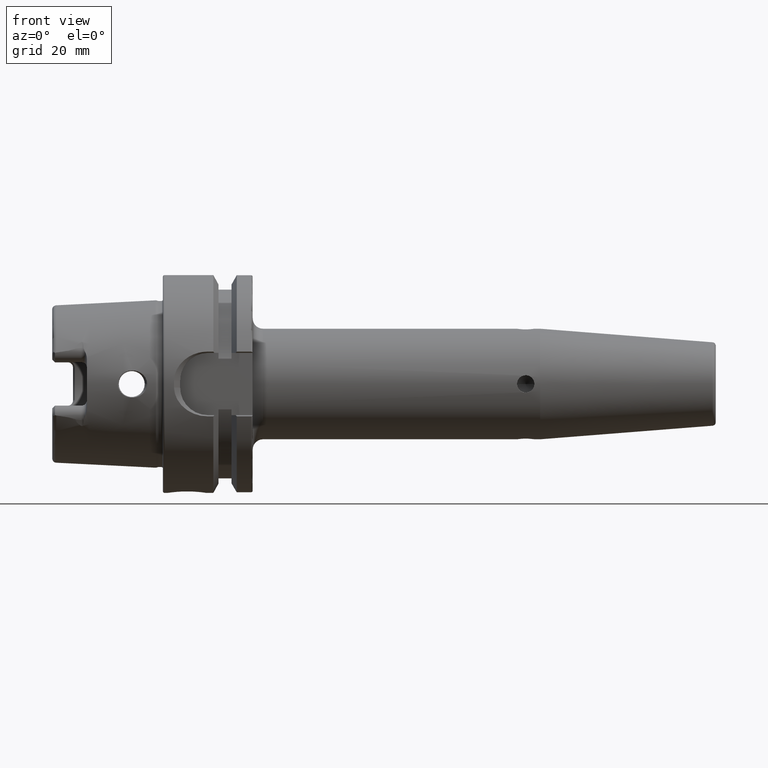
[diagram: clean part render]
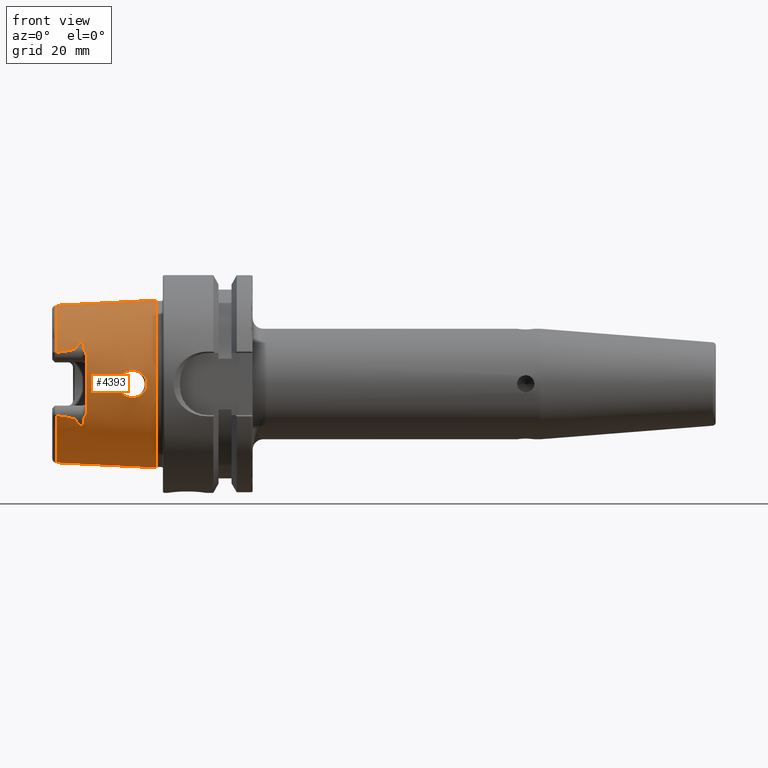
[diagram: same view with one face highlighted and labeled with its STEP entity id]
A machine part, front view. The second image highlights one B-rep face of the part: STEP entity #4393.
In plain terms, the highlighted conical surface has half-angle 2.868 deg.
Its self-contained STEP definition (entity closure, byte-faithful):
#1205=CARTESIAN_POINT('',(-3.086004333271E1,0.E0,0.E0));
#1206=DIRECTION('',(-1.E0,0.E0,0.E0));
#1207=DIRECTION('',(0.E0,0.E0,-1.E0));
#1208=AXIS2_PLACEMENT_3D('',#1205,#1206,#1207);
#1210=CARTESIAN_POINT('',(-3.086004333271E1,-2.086981840766E1,
-9.117659021249E0));
#1211=CARTESIAN_POINT('',(-3.065605186921E1,-2.087009790144E1,
-9.142546682600E0));
#1212=CARTESIAN_POINT('',(-3.026548971795E1,-2.087000011471E1,
-9.191475209956E0));
#1213=CARTESIAN_POINT('',(-2.973365321821E1,-2.086810691684E1,
-9.261644143754E0));
#1214=CARTESIAN_POINT('',(-2.925038551401E1,-2.086470072146E1,
-9.328786458642E0));
#1215=CARTESIAN_POINT('',(-2.880157988887E1,-2.085984936823E1,
-9.394516747198E0));
#1216=CARTESIAN_POINT('',(-2.838907941827E1,-2.085367010435E1,
-9.458361489324E0));
#1217=CARTESIAN_POINT('',(-2.802099682424E1,-2.084652664288E1,
-9.518574595620E0));
#1218=CARTESIAN_POINT('',(-2.767812179380E1,-2.083824707065E1,
-9.577892562152E0));
#1219=CARTESIAN_POINT('',(-2.735909724315E1,-2.082880059047E1,
-9.636540338401E0));
#1220=CARTESIAN_POINT('',(-2.707640752188E1,-2.081875776007E1,
-9.691819563709E0));
#1221=CARTESIAN_POINT('',(-2.681109569702E1,-2.080761261851E1,
-9.747101291047E0));
#1222=CARTESIAN_POINT('',(-2.656858158621E1,-2.079554827328E1,
-9.801340213004E0));
#1223=CARTESIAN_POINT('',(-2.635507856236E1,-2.078317780740E1,
-9.852543087215E0));
#1224=CARTESIAN_POINT('',(-2.614343140954E1,-2.076877229942E1,
-9.907525856621E0));
#1225=CARTESIAN_POINT('',(-2.596459737730E1,-2.075441286803E1,
-9.958294561477E0));
#1226=CARTESIAN_POINT('',(-2.579520406731E1,-2.073852104516E1,
-1.001089413177E1));
#1227=CARTESIAN_POINT('',(-2.563886330149E1,-2.072082009527E1,
-1.006541254284E1));
#1228=CARTESIAN_POINT('',(-2.551094126364E1,-2.070354791350E1,
-1.011550881391E1));
#1229=CARTESIAN_POINT('',(-2.537697699431E1,-2.068112228769E1,
-1.017650437323E1));
#1230=CARTESIAN_POINT('',(-2.527062763811E1,-2.065753992865E1,
-1.023629340194E1));
#1231=CARTESIAN_POINT('',(-2.518213991029E1,-2.063064078682E1,
-1.030035138509E1));
#1232=CARTESIAN_POINT('',(-2.511551447564E1,-2.059710280776E1,
-1.037470366444E1));
#1233=CARTESIAN_POINT('',(-2.509792629022E1,-2.057060375039E1,
-1.042902505095E1));
#1234=CARTESIAN_POINT('',(-2.509832943528E1,-2.055609878966E1,
-1.045749263925E1));
#1236=CARTESIAN_POINT('',(-2.509832943528E1,-2.055609878966E1,
-1.045749263925E1));
#1237=CARTESIAN_POINT('',(-2.509973452206E1,-2.050554446019E1,
-1.055671109738E1));
#1238=CARTESIAN_POINT('',(-2.507065476512E1,-2.040407944593E1,
-1.075584740029E1));
#1239=CARTESIAN_POINT('',(-2.492546543353E1,-2.024884407642E1,
-1.106051396733E1));
#1240=CARTESIAN_POINT('',(-2.468318136842E1,-2.009639154268E1,
-1.135971891163E1));
#1241=CARTESIAN_POINT('',(-2.435973964364E1,-1.995041487066E1,
-1.164621426170E1));
#1242=CARTESIAN_POINT('',(-2.396639941619E1,-1.981051447172E1,
-1.192078425439E1));
#1243=CARTESIAN_POINT('',(-2.366236291861E1,-1.972062082665E1,
-1.209721046657E1));
#1244=CARTESIAN_POINT('',(-2.35E1,-1.967619090430E1,-1.218440909893E1));
#1246=CARTESIAN_POINT('',(-2.35E1,-1.967619090430E1,1.218440909893E1));
#1247=CARTESIAN_POINT('',(-2.366273962512E1,-1.972072391079E1,
1.209700815256E1));
#1248=CARTESIAN_POINT('',(-2.396737226811E1,-1.981081058458E1,
1.192020310018E1));
#1249=CARTESIAN_POINT('',(-2.436114053628E1,-1.995096134710E1,
1.164514174130E1));
#1250=CARTESIAN_POINT('',(-2.468459443081E1,-2.009709754078E1,
1.135833331235E1));
#1251=CARTESIAN_POINT('',(-2.492685004054E1,-2.024992689999E1,
1.105838880642E1));
#1252=CARTESIAN_POINT('',(-2.507099685322E1,-2.040484030157E1,
1.075435413702E1));
#1253=CARTESIAN_POINT('',(-2.509972603515E1,-2.050584981529E1,
1.055611180425E1));
#1254=CARTESIAN_POINT('',(-2.509832943528E1,-2.055609878966E1,
1.045749263925E1));
#1256=CARTESIAN_POINT('',(-3.086004333271E1,-2.086981840766E1,
9.117659021249E0));
#1257=CARTESIAN_POINT('',(-3.065605186921E1,-2.087009790144E1,
9.142546682600E0));
#1258=CARTESIAN_POINT('',(-3.026548971795E1,-2.087000011471E1,
9.191475209956E0));
#1259=CARTESIAN_POINT('',(-2.973365321821E1,-2.086810691684E1,
9.261644143754E0));
#1260=CARTESIAN_POINT('',(-2.925038551401E1,-2.086470072146E1,
9.328786458642E0));
#1261=CARTESIAN_POINT('',(-2.880157988887E1,-2.085984936823E1,
9.394516747198E0));
#1262=CARTESIAN_POINT('',(-2.838907941827E1,-2.085367010435E1,
9.458361489324E0));
#1263=CARTESIAN_POINT('',(-2.802099682424E1,-2.084652664288E1,
9.518574595620E0));
#1264=CARTESIAN_POINT('',(-2.767812179380E1,-2.083824707065E1,
9.577892562152E0));
#1265=CARTESIAN_POINT('',(-2.735909724315E1,-2.082880059047E1,
9.636540338401E0));
#1266=CARTESIAN_POINT('',(-2.707640752188E1,-2.081875776007E1,
9.691819563709E0));
#1267=CARTESIAN_POINT('',(-2.681109569702E1,-2.080761261851E1,
9.747101291047E0));
#1268=CARTESIAN_POINT('',(-2.656858158621E1,-2.079554827328E1,
9.801340213004E0));
#1269=CARTESIAN_POINT('',(-2.635507856236E1,-2.078317780740E1,
9.852543087215E0));
#1270=CARTESIAN_POINT('',(-2.614343140954E1,-2.076877229942E1,
9.907525856621E0));
#1271=CARTESIAN_POINT('',(-2.596459737730E1,-2.075441286803E1,
9.958294561477E0));
#1272=CARTESIAN_POINT('',(-2.579520406731E1,-2.073852104516E1,
1.001089413177E1));
#1273=CARTESIAN_POINT('',(-2.563886330149E1,-2.072082009527E1,
1.006541254284E1));
#1274=CARTESIAN_POINT('',(-2.551094126364E1,-2.070354791350E1,
1.011550881391E1));
#1275=CARTESIAN_POINT('',(-2.537697699431E1,-2.068112228769E1,
1.017650437323E1));
#1276=CARTESIAN_POINT('',(-2.527062763811E1,-2.065753992865E1,
1.023629340194E1));
#1277=CARTESIAN_POINT('',(-2.518213991029E1,-2.063064078682E1,
1.030035138509E1));
#1278=CARTESIAN_POINT('',(-2.511551447564E1,-2.059710280776E1,
1.037470366444E1));
#1279=CARTESIAN_POINT('',(-2.509792629022E1,-2.057060375039E1,
1.042902505095E1));
#1280=CARTESIAN_POINT('',(-2.509832943528E1,-2.055609878966E1,
1.045749263925E1));
#1282=CARTESIAN_POINT('',(-3.086004333271E1,0.E0,0.E0));
#1283=DIRECTION('',(-1.E0,0.E0,0.E0));
#1284=DIRECTION('',(0.E0,-9.163649919573E-1,4.003438540993E-1));
#1285=AXIS2_PLACEMENT_3D('',#1282,#1283,#1284);
#1287=DIRECTION('',(-9.987474310439E-1,-1.043943068730E-10,-5.003567710383E-2));
#1288=VECTOR('',#1287,2.889623723507E1);
#1289=CARTESIAN_POINT('',(-2.000000627352E0,3.013169918385E-9,
2.422041252602E1));
#1290=LINE('',#1289,#1288);
#1291=CARTESIAN_POINT('',(-2.000078966146E0,0.E0,0.E0));
#1292=DIRECTION('',(-1.E0,0.E0,0.E0));
#1293=DIRECTION('',(0.E0,0.E0,-1.E0));
#1294=AXIS2_PLACEMENT_3D('',#1291,#1292,#1293);
#1296=DIRECTION('',(-9.987474310439E-1,1.043954869385E-10,5.003567710383E-2));
#1297=VECTOR('',#1296,2.889623723507E1);
#1298=CARTESIAN_POINT('',(-2.000000627352E0,-3.013171862045E-9,
-2.422041252602E1));
#1299=LINE('',#1298,#1297);
#1300=CARTESIAN_POINT('',(-4.550876813471E0,-2.409262908457E1,0.E0));
#1301=CARTESIAN_POINT('',(-4.550876813471E0,-2.409262908457E1,
-2.877967437564E-1));
#1302=CARTESIAN_POINT('',(-4.618402668122E0,-2.407904026989E1,
-8.400480277036E-1));
#1303=CARTESIAN_POINT('',(-4.894270861234E0,-2.402533951533E1,
-1.607621503292E0));
#1304=CARTESIAN_POINT('',(-5.311993211538E0,-2.394889792202E1,
-2.281051834978E0));
#1305=CARTESIAN_POINT('',(-5.862519901701E0,-2.385721878678E1,
-2.867738815602E0));
#1306=CARTESIAN_POINT('',(-6.525866941490E0,-2.376062455518E1,
-3.345027969698E0));
#1307=CARTESIAN_POINT('',(-7.283123635549E0,-2.366962568370E1,
-3.694964458018E0));
#1308=CARTESIAN_POINT('',(-8.068113572350E0,-2.359725545319E1,
-3.894815234736E0));
#1309=CARTESIAN_POINT('',(-8.870763704734E0,-2.354641057253E1,
-3.954593366443E0));
#1310=CARTESIAN_POINT('',(-9.668430299005E0,-2.351943467091E1,
-3.874115224399E0));
#1311=CARTESIAN_POINT('',(-1.044589907295E1,-2.351586499835E1,
-3.652697425224E0));
#1312=CARTESIAN_POINT('',(-1.117274859870E1,-2.353296697451E1,
-3.292217258769E0));
#1313=CARTESIAN_POINT('',(-1.181517087273E1,-2.356448626338E1,
-2.804326645060E0));
#1314=CARTESIAN_POINT('',(-1.234145757444E1,-2.360166761628E1,
-2.212677597337E0));
#1315=CARTESIAN_POINT('',(-1.273619031472E1,-2.363617974383E1,
-1.537866875102E0));
#1316=CARTESIAN_POINT('',(-1.298600958619E1,-2.366096015370E1,
-7.912407707895E-1));
#1317=CARTESIAN_POINT('',(-1.304439190524E1,-2.366711362744E1,
-2.691253192330E-1));
#1318=CARTESIAN_POINT('',(-1.304439190524E1,-2.366711362744E1,0.E0));
#1320=CARTESIAN_POINT('',(-1.304439190524E1,-2.366711362744E1,0.E0));
#1321=CARTESIAN_POINT('',(-1.304439190524E1,-2.366711362744E1,
2.703037479710E-1));
#1322=CARTESIAN_POINT('',(-1.298550406978E1,-2.366090648148E1,
7.943947598310E-1));
#1323=CARTESIAN_POINT('',(-1.273401403229E1,-2.363596973658E1,
1.542974157060E0));
#1324=CARTESIAN_POINT('',(-1.233736358375E1,-2.360133785537E1,
2.218343463292E0));
#1325=CARTESIAN_POINT('',(-1.181014932937E1,-2.356418192045E1,
2.808926516834E0));
#1326=CARTESIAN_POINT('',(-1.116702224785E1,-2.353275771571E1,
3.295736926792E0));
#1327=CARTESIAN_POINT('',(-1.043963924537E1,-2.351579580285E1,
3.655159652366E0));
#1328=CARTESIAN_POINT('',(-9.660475865824E0,-2.351957664188E1,
3.875690102308E0));
#1329=CARTESIAN_POINT('',(-8.862519366235E0,-2.354681821912E1,
3.954658875556E0));
#1330=CARTESIAN_POINT('',(-8.061144349956E0,-2.359781764260E1,
3.893566864752E0));
#1331=CARTESIAN_POINT('',(-7.278331496707E0,-2.367015194234E1,
3.693151756651E0));
#1332=CARTESIAN_POINT('',(-6.522034984199E0,-2.376113111253E1,
3.342852826910E0));
#1333=CARTESIAN_POINT('',(-5.857697434742E0,-2.385796493762E1,
2.863685030162E0));
#1334=CARTESIAN_POINT('',(-5.307304902799E0,-2.394972134456E1,
2.275049448592E0));
#1335=CARTESIAN_POINT('',(-4.890994728381E0,-2.402596524863E1,
1.600623477393E0));
#1336=CARTESIAN_POINT('',(-4.617587055612E0,-2.407920576001E1,
8.353714922673E-1));
#1337=CARTESIAN_POINT('',(-4.550876813471E0,-2.409262908457E1,
2.859699745206E-1));
#1338=CARTESIAN_POINT('',(-4.550876813471E0,-2.409262908457E1,0.E0));
#1582=CARTESIAN_POINT('',(-2.2E1,0.E0,0.E0));
#1583=DIRECTION('',(1.E0,0.E0,0.E0));
#1584=DIRECTION('',(0.E0,-9.478058907476E-1,3.188479158848E-1));
#1585=AXIS2_PLACEMENT_3D('',#1582,#1583,#1584);
#1606=CARTESIAN_POINT('',(-2.294092122685E1,-2.065240209098E1,
1.050656162214E1));
#1607=CARTESIAN_POINT('',(-2.294111150362E1,-2.070060050173E1,
1.041179857036E1));
#1608=CARTESIAN_POINT('',(-2.291155618279E1,-2.079810368142E1,
1.022013150145E1));
#1609=CARTESIAN_POINT('',(-2.280220882019E1,-2.094364655543E1,
9.931344787062E0));
#1610=CARTESIAN_POINT('',(-2.265591813207E1,-2.109587424253E1,
9.621813423491E0));
#1611=CARTESIAN_POINT('',(-2.248922631050E1,-2.125829077290E1,
9.278752706811E0));
#1612=CARTESIAN_POINT('',(-2.232290478409E1,-2.142677823370E1,
8.905105674939E0));
#1613=CARTESIAN_POINT('',(-2.216473996003E1,-2.160943095424E1,
8.475268221827E0));
#1614=CARTESIAN_POINT('',(-2.203800494772E1,-2.180688467124E1,
7.973400274330E0));
#1615=CARTESIAN_POINT('',(-2.2E1,-2.194020305932E1,7.600470353620E0));
#1616=CARTESIAN_POINT('',(-2.2E1,-2.200658163281E1,7.403153702532E0));
#1618=CARTESIAN_POINT('',(-2.35E1,-1.967619090430E1,1.218440909893E1));
#1619=CARTESIAN_POINT('',(-2.347055544183E1,-1.966813352615E1,
1.220022259394E1));
#1620=CARTESIAN_POINT('',(-2.341241754079E1,-1.966296524110E1,
1.221405587161E1));
#1621=CARTESIAN_POINT('',(-2.332691180913E1,-1.968819645611E1,
1.218153439148E1));
#1622=CARTESIAN_POINT('',(-2.326562915993E1,-1.972716128503E1,
1.212423440230E1));
#1623=CARTESIAN_POINT('',(-2.321457824419E1,-1.977282283767E1,
1.205455891523E1));
#1624=CARTESIAN_POINT('',(-2.317237092190E1,-1.982191871511E1,
1.197776914898E1));
#1625=CARTESIAN_POINT('',(-2.313405569140E1,-1.987650319484E1,
1.189074412018E1));
#1626=CARTESIAN_POINT('',(-2.309893102693E1,-1.993698168379E1,
1.179256148436E1));
#1627=CARTESIAN_POINT('',(-2.306619173465E1,-2.000452504011E1,
1.168092979418E1));
#1628=CARTESIAN_POINT('',(-2.303585792279E1,-2.007988592186E1,
1.155402609307E1));
#1629=CARTESIAN_POINT('',(-2.300835372165E1,-2.016335008984E1,
1.141062860755E1));
#1630=CARTESIAN_POINT('',(-2.298444209752E1,-2.025420771202E1,
1.125113528522E1));
#1631=CARTESIAN_POINT('',(-2.296476112948E1,-2.035248276247E1,
1.107452667370E1));
#1632=CARTESIAN_POINT('',(-2.295058450020E1,-2.045393521043E1,
1.088757448663E1));
#1633=CARTESIAN_POINT('',(-2.294234633039E1,-2.055556823074E1,
1.069534304728E1));
#1634=CARTESIAN_POINT('',(-2.294079499416E1,-2.062042648306E1,
1.056942896863E1));
#1635=CARTESIAN_POINT('',(-2.294092122685E1,-2.065240209098E1,
1.050656162214E1));
#1650=CARTESIAN_POINT('',(-2.2E1,-2.200658163281E1,-7.403153702532E0));
#1651=CARTESIAN_POINT('',(-2.2E1,-2.194041206251E1,-7.599849071691E0));
#1652=CARTESIAN_POINT('',(-2.203791204013E1,-2.180777367988E1,
-7.970791535206E0));
#1653=CARTESIAN_POINT('',(-2.216124332882E1,-2.161431807221E1,
-8.463121846466E0));
#1654=CARTESIAN_POINT('',(-2.231690544694E1,-2.143319349692E1,
-8.890437278107E0));
#1655=CARTESIAN_POINT('',(-2.248243264446E1,-2.126495040771E1,
-9.264341358459E0));
#1656=CARTESIAN_POINT('',(-2.264962455228E1,-2.110208200308E1,
-9.608988754332E0));
#1657=CARTESIAN_POINT('',(-2.279820546886E1,-2.094826699260E1,
-9.922113798161E0));
#1658=CARTESIAN_POINT('',(-2.291041611879E1,-2.080066788900E1,
-1.021509432093E1));
#1659=CARTESIAN_POINT('',(-2.294111504954E1,-2.070149870796E1,
-1.041003260418E1));
#1660=CARTESIAN_POINT('',(-2.294092122685E1,-2.065240209098E1,
-1.050656162214E1));
#1701=CARTESIAN_POINT('',(-2.294092122685E1,-2.065240209098E1,
-1.050656162214E1));
#1702=CARTESIAN_POINT('',(-2.294079811365E1,-2.062121667260E1,
-1.056787537441E1));
#1703=CARTESIAN_POINT('',(-2.294227405167E1,-2.055830300011E1,
-1.069004036703E1));
#1704=CARTESIAN_POINT('',(-2.294989885781E1,-2.046110801024E1,
-1.087409737897E1));
#1705=CARTESIAN_POINT('',(-2.296285463626E1,-2.036461322623E1,
-1.105234197859E1));
#1706=CARTESIAN_POINT('',(-2.298069488493E1,-2.027124871589E1,
-1.122074715811E1));
#1707=CARTESIAN_POINT('',(-2.300253013390E1,-2.018397484429E1,
-1.137466436651E1));
#1708=CARTESIAN_POINT('',(-2.302710385389E1,-2.010504782816E1,
-1.151103285332E1));
#1709=CARTESIAN_POINT('',(-2.305403844285E1,-2.003337429027E1,
-1.163257720670E1));
#1710=CARTESIAN_POINT('',(-2.308354622181E1,-1.996741257225E1,
-1.174248406628E1));
#1711=CARTESIAN_POINT('',(-2.311637460329E1,-1.990558888034E1,
-1.184374034503E1));
#1712=CARTESIAN_POINT('',(-2.315335701227E1,-1.984764484128E1,
-1.193695919151E1));
#1713=CARTESIAN_POINT('',(-2.319380614677E1,-1.979554781478E1,
-1.201922523601E1));
#1714=CARTESIAN_POINT('',(-2.324122285505E1,-1.974731655480E1,
-1.209372623764E1));
#1715=CARTESIAN_POINT('',(-2.329363990695E1,-1.970780502573E1,
-1.215297060557E1));
#1716=CARTESIAN_POINT('',(-2.335697965131E1,-1.967678487987E1,
-1.219707368641E1));
#1717=CARTESIAN_POINT('',(-2.343048235888E1,-1.966376869273E1,
-1.221104561254E1));
#1718=CARTESIAN_POINT('',(-2.347671290010E1,-1.966981848843E1,
-1.219691566928E1));
#1719=CARTESIAN_POINT('',(-2.35E1,-1.967619090430E1,-1.218440909893E1));
#2741=CARTESIAN_POINT('',(-2.000078966146E0,0.E0,-2.422042115892E1));
#2742=CARTESIAN_POINT('',(-2.000078966146E0,0.E0,2.422042115892E1));
#2743=VERTEX_POINT('',#2741);
#2744=VERTEX_POINT('',#2742);
#2856=CARTESIAN_POINT('',(-2.2E1,-2.200658163281E1,-7.403153702532E0));
#2858=VERTEX_POINT('',#2856);
#2859=CARTESIAN_POINT('',(-2.35E1,-1.967619090430E1,-1.218440909893E1));
#2860=VERTEX_POINT('',#2859);
#2862=CARTESIAN_POINT('',(-2.2E1,-2.200658163281E1,7.403153702532E0));
#2864=VERTEX_POINT('',#2862);
#2869=CARTESIAN_POINT('',(-2.35E1,-1.967619090430E1,1.218440909893E1));
#2870=VERTEX_POINT('',#2869);
#2871=VERTEX_POINT('',#1236);
#2872=CARTESIAN_POINT('',(-2.509832943528E1,-2.055609878966E1,
1.045749263925E1));
#2873=VERTEX_POINT('',#2872);
#2874=VERTEX_POINT('',#1635);
#2875=VERTEX_POINT('',#1701);
#2916=CARTESIAN_POINT('',(-3.086004333271E1,0.E0,-2.277456973022E1));
#2917=CARTESIAN_POINT('',(-3.086004333271E1,-2.086981840766E1,
-9.117659021249E0));
#2918=VERTEX_POINT('',#2916);
#2919=VERTEX_POINT('',#2917);
#2922=CARTESIAN_POINT('',(-3.086004333271E1,0.E0,2.277456973022E1));
#2924=VERTEX_POINT('',#2922);
#2926=CARTESIAN_POINT('',(-3.086004333271E1,-2.086981840766E1,
9.117659021249E0));
#2927=VERTEX_POINT('',#2926);
#3011=CARTESIAN_POINT('',(-4.550876813471E0,-2.409262908457E1,0.E0));
#3013=VERTEX_POINT('',#3011);
#3015=CARTESIAN_POINT('',(-1.304439190524E1,-2.366711362744E1,0.E0));
#3017=VERTEX_POINT('',#3015);
#4356=CARTESIAN_POINT('',(-1.643002229390E1,0.E0,0.E0));
#4357=DIRECTION('',(1.E0,0.E0,0.E0));
#4358=DIRECTION('',(0.E0,0.E0,1.E0));
#4359=AXIS2_PLACEMENT_3D('',#4356,#4357,#4358);
#4360=CONICAL_SURFACE('',#4359,2.349749739118E1,2.86805556E0);
#4361=ORIENTED_EDGE('',*,*,#3232,.T.);
#4363=ORIENTED_EDGE('',*,*,#4362,.T.);
#4365=ORIENTED_EDGE('',*,*,#4364,.T.);
#4367=ORIENTED_EDGE('',*,*,#4366,.F.);
#4369=ORIENTED_EDGE('',*,*,#4368,.F.);
#4371=ORIENTED_EDGE('',*,*,#4370,.F.);
#4373=ORIENTED_EDGE('',*,*,#4372,.F.);
#4375=ORIENTED_EDGE('',*,*,#4374,.F.);
#4377=ORIENTED_EDGE('',*,*,#4376,.T.);
#4379=ORIENTED_EDGE('',*,*,#4378,.F.);
#4381=ORIENTED_EDGE('',*,*,#4380,.T.);
#4382=ORIENTED_EDGE('',*,*,#3196,.F.);
#4383=ORIENTED_EDGE('',*,*,#4350,.F.);
#4384=ORIENTED_EDGE('',*,*,#3192,.T.);
#4385=EDGE_LOOP('',(#4361,#4363,#4365,#4367,#4369,#4371,#4373,#4375,#4377,#4379,
#4381,#4382,#4383,#4384));
#4386=FACE_OUTER_BOUND('',#4385,.F.);
#4388=ORIENTED_EDGE('',*,*,#4387,.F.);
#4390=ORIENTED_EDGE('',*,*,#4389,.F.);
#4391=EDGE_LOOP('',(#4388,#4390));
#4392=FACE_BOUND('',#4391,.F.);
#4393=ADVANCED_FACE('',(#4386,#4392),#4360,.T.);
#1209=CIRCLE('',#1208,2.277456973022E1);
#1235=B_SPLINE_CURVE_WITH_KNOTS('',3,(#1210,#1211,#1212,#1213,#1214,#1215,#1216,
#1217,#1218,#1219,#1220,#1221,#1222,#1223,#1224,#1225,#1226,#1227,#1228,#1229,
#1230,#1231,#1232,#1233,#1234),.UNSPECIFIED.,.F.,.F.,(4,1,1,1,1,1,1,1,1,1,1,1,1,
1,1,1,1,1,1,1,1,1,4),(0.E0,4.545454545455E-2,9.090909090909E-2,
1.363636363636E-1,1.818181818182E-1,2.272727272727E-1,2.727272727273E-1,
3.181818181818E-1,3.636363636364E-1,4.090909090909E-1,4.545454545455E-1,5.E-1,
5.454545454545E-1,5.909090909091E-1,6.363636363636E-1,6.818181818182E-1,
7.272727272727E-1,7.727272727273E-1,8.181818181818E-1,8.636363636364E-1,
9.090909090909E-1,9.545454545455E-1,1.E0),.UNSPECIFIED.);
#1245=B_SPLINE_CURVE_WITH_KNOTS('',3,(#1236,#1237,#1238,#1239,#1240,#1241,#1242,
#1243,#1244),.UNSPECIFIED.,.F.,.F.,(4,1,1,1,1,1,4),(0.E0,1.666666666667E-1,
3.333333333333E-1,5.E-1,6.666666666667E-1,8.333333333333E-1,1.E0),
.UNSPECIFIED.);
#1255=B_SPLINE_CURVE_WITH_KNOTS('',3,(#1246,#1247,#1248,#1249,#1250,#1251,#1252,
#1253,#1254),.UNSPECIFIED.,.F.,.F.,(4,1,1,1,1,1,4),(0.E0,1.666666666667E-1,
3.333333333333E-1,5.E-1,6.666666666667E-1,8.333333333333E-1,1.E0),
.UNSPECIFIED.);
#1281=B_SPLINE_CURVE_WITH_KNOTS('',3,(#1256,#1257,#1258,#1259,#1260,#1261,#1262,
#1263,#1264,#1265,#1266,#1267,#1268,#1269,#1270,#1271,#1272,#1273,#1274,#1275,
#1276,#1277,#1278,#1279,#1280),.UNSPECIFIED.,.F.,.F.,(4,1,1,1,1,1,1,1,1,1,1,1,1,
1,1,1,1,1,1,1,1,1,4),(0.E0,4.545454545455E-2,9.090909090909E-2,
1.363636363636E-1,1.818181818182E-1,2.272727272727E-1,2.727272727273E-1,
3.181818181818E-1,3.636363636364E-1,4.090909090909E-1,4.545454545455E-1,5.E-1,
5.454545454545E-1,5.909090909091E-1,6.363636363636E-1,6.818181818182E-1,
7.272727272727E-1,7.727272727273E-1,8.181818181818E-1,8.636363636364E-1,
9.090909090909E-1,9.545454545455E-1,1.E0),.UNSPECIFIED.);
#1286=CIRCLE('',#1285,2.277456973022E1);
#1295=CIRCLE('',#1294,2.422042115892E1);
#1319=B_SPLINE_CURVE_WITH_KNOTS('',3,(#1300,#1301,#1302,#1303,#1304,#1305,#1306,
#1307,#1308,#1309,#1310,#1311,#1312,#1313,#1314,#1315,#1316,#1317,#1318),
.UNSPECIFIED.,.F.,.F.,(4,1,1,1,1,1,1,1,1,1,1,1,1,1,1,1,4),(0.E0,6.25E-2,1.25E-1,
1.875E-1,2.5E-1,3.125E-1,3.75E-1,4.375E-1,5.E-1,5.625E-1,6.25E-1,6.875E-1,
7.5E-1,8.125E-1,8.75E-1,9.375E-1,1.E0),.UNSPECIFIED.);
#1339=B_SPLINE_CURVE_WITH_KNOTS('',3,(#1320,#1321,#1322,#1323,#1324,#1325,#1326,
#1327,#1328,#1329,#1330,#1331,#1332,#1333,#1334,#1335,#1336,#1337,#1338),
.UNSPECIFIED.,.F.,.F.,(4,1,1,1,1,1,1,1,1,1,1,1,1,1,1,1,4),(0.E0,6.25E-2,1.25E-1,
1.875E-1,2.5E-1,3.125E-1,3.75E-1,4.375E-1,5.E-1,5.625E-1,6.25E-1,6.875E-1,
7.5E-1,8.125E-1,8.75E-1,9.375E-1,1.E0),.UNSPECIFIED.);
#1586=CIRCLE('',#1585,2.321844783582E1);
#1617=B_SPLINE_CURVE_WITH_KNOTS('',3,(#1606,#1607,#1608,#1609,#1610,#1611,#1612,
#1613,#1614,#1615,#1616),.UNSPECIFIED.,.F.,.F.,(4,1,1,1,1,1,1,1,4),(0.E0,
1.25E-1,2.5E-1,3.75E-1,5.E-1,6.25E-1,7.5E-1,8.75E-1,1.E0),.UNSPECIFIED.);
#1636=B_SPLINE_CURVE_WITH_KNOTS('',3,(#1618,#1619,#1620,#1621,#1622,#1623,#1624,
#1625,#1626,#1627,#1628,#1629,#1630,#1631,#1632,#1633,#1634,#1635),
.UNSPECIFIED.,.F.,.F.,(4,1,1,1,1,1,1,1,1,1,1,1,1,1,1,4),(0.E0,6.666666666667E-2,
1.333333333333E-1,2.E-1,2.666666666667E-1,3.333333333333E-1,4.E-1,
4.666666666667E-1,5.333333333333E-1,6.E-1,6.666666666667E-1,7.333333333333E-1,
8.E-1,8.666666666667E-1,9.333333333333E-1,1.E0),.UNSPECIFIED.);
#1661=B_SPLINE_CURVE_WITH_KNOTS('',3,(#1650,#1651,#1652,#1653,#1654,#1655,#1656,
#1657,#1658,#1659,#1660),.UNSPECIFIED.,.F.,.F.,(4,1,1,1,1,1,1,1,4),(0.E0,
1.25E-1,2.5E-1,3.75E-1,5.E-1,6.25E-1,7.5E-1,8.75E-1,1.E0),.UNSPECIFIED.);
#1720=B_SPLINE_CURVE_WITH_KNOTS('',3,(#1701,#1702,#1703,#1704,#1705,#1706,#1707,
#1708,#1709,#1710,#1711,#1712,#1713,#1714,#1715,#1716,#1717,#1718,#1719),
.UNSPECIFIED.,.F.,.F.,(4,1,1,1,1,1,1,1,1,1,1,1,1,1,1,1,4),(0.E0,6.25E-2,1.25E-1,
1.875E-1,2.5E-1,3.125E-1,3.75E-1,4.375E-1,5.E-1,5.625E-1,6.25E-1,6.875E-1,
7.5E-1,8.125E-1,8.75E-1,9.375E-1,1.E0),.UNSPECIFIED.);
#3192=EDGE_CURVE('',#2743,#2918,#1299,.T.);
#3196=EDGE_CURVE('',#2744,#2924,#1290,.T.);
#3232=EDGE_CURVE('',#2918,#2919,#1209,.T.);
#4350=EDGE_CURVE('',#2743,#2744,#1295,.T.);
#4362=EDGE_CURVE('',#2919,#2871,#1235,.T.);
#4364=EDGE_CURVE('',#2871,#2860,#1245,.T.);
#4366=EDGE_CURVE('',#2875,#2860,#1720,.T.);
#4368=EDGE_CURVE('',#2858,#2875,#1661,.T.);
#4370=EDGE_CURVE('',#2864,#2858,#1586,.T.);
#4372=EDGE_CURVE('',#2874,#2864,#1617,.T.);
#4374=EDGE_CURVE('',#2870,#2874,#1636,.T.);
#4376=EDGE_CURVE('',#2870,#2873,#1255,.T.);
#4378=EDGE_CURVE('',#2927,#2873,#1281,.T.);
#4380=EDGE_CURVE('',#2927,#2924,#1286,.T.);
#4387=EDGE_CURVE('',#3013,#3017,#1319,.T.);
#4389=EDGE_CURVE('',#3017,#3013,#1339,.T.);